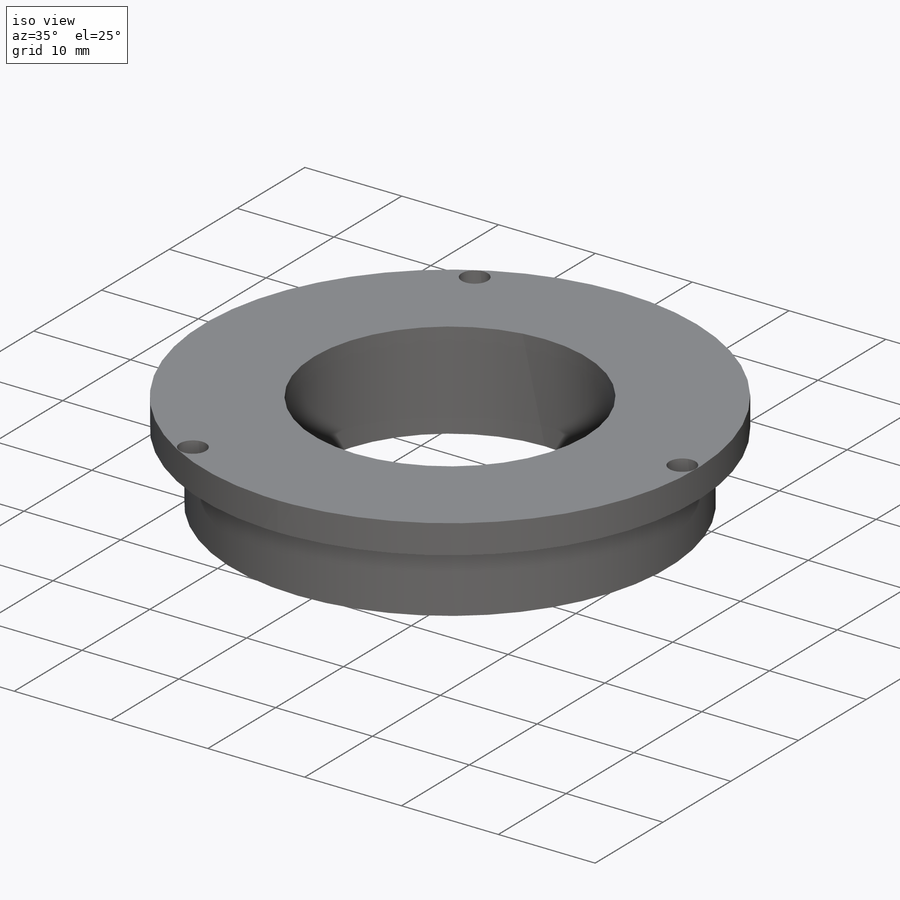
[diagram: iso view]
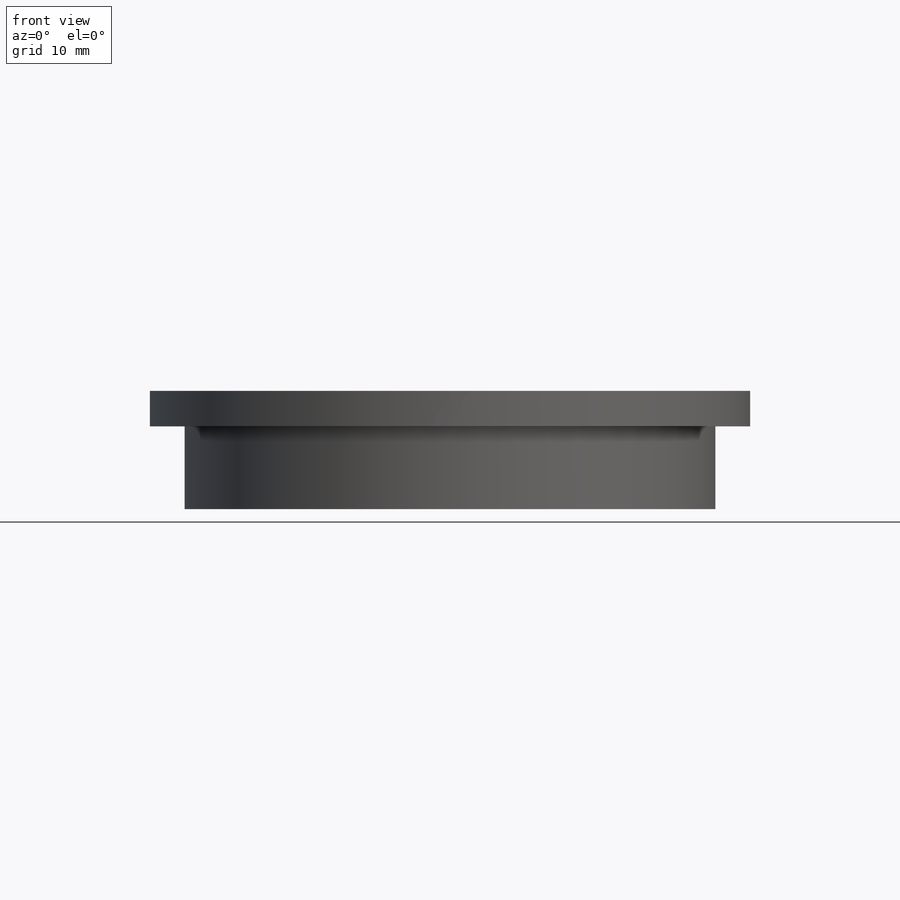
[diagram: front view]
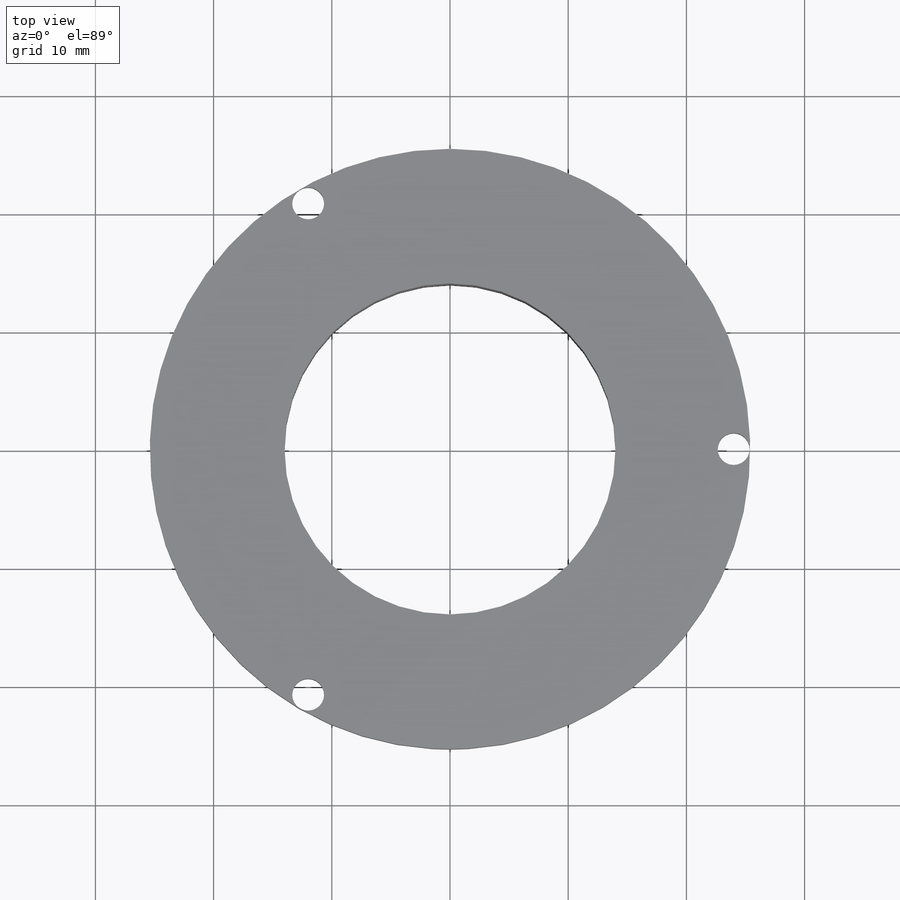
[diagram: top view]
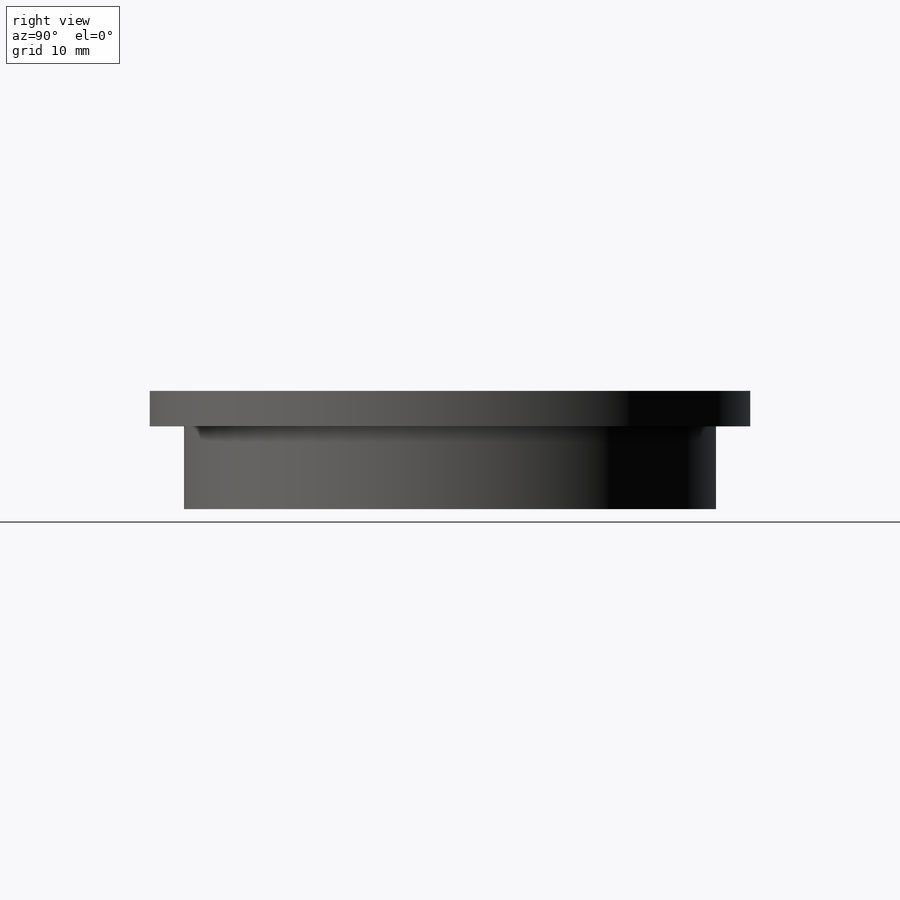
[diagram: right view]
SOLIDWORKS PART (.sldprt)
format: sldprt  version: not decoded by parser v0  size: 137,216 bytes
history: native  units: mm
features: sketch x4, plane x3, cut_extrude x3, material x1, extrude x1 (+8 scaffold rows collapsed)
feature tree (20):
  scaffold x8  (default folders/planes/origin — collapsed)
  material  "Material <sin especificar>"
  plane  "Alzado"
  plane  "Planta"
  plane  "Vista lateral"
  sketch  "Croquis1"  dims[D1=50.8mm]
  extrude  "Saliente-Extruir2"  Depth=10mm
  sketch  "Croquis4"  dims[D1=28.0mm]
  cut_extrude  "Cortar-Extruir2"  Depth=47mm
  sketch  "Croquis5"  dims[D1=45.0mm]
  cut_extrude  "Cortar-Extruir4"  Depth=7mm
  sketch  "Croquis6"  dims[D1=48.0mm D2=2.7mm D3=3.0]
  cut_extrude  "Cortar-Extruir5"  Depth=37mm
decode coverage: 8 of 8 modeling features carry decoded parameters
note: suppression state not decoded; provenance and decode notes live in map.json
